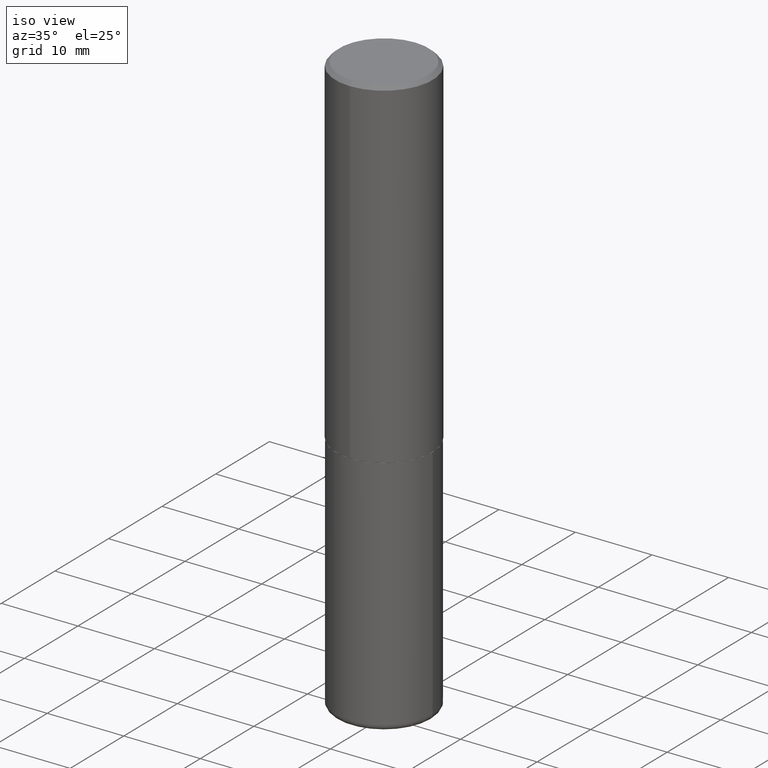
[diagram: clean part render]
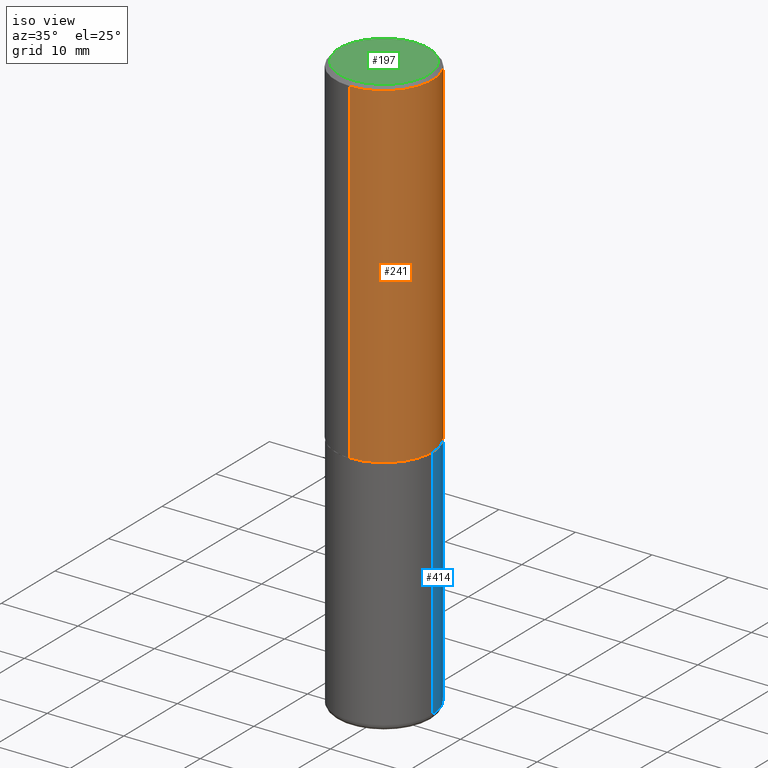
[diagram: same view with three faces highlighted in distinct colors, each labeled with its STEP entity id]
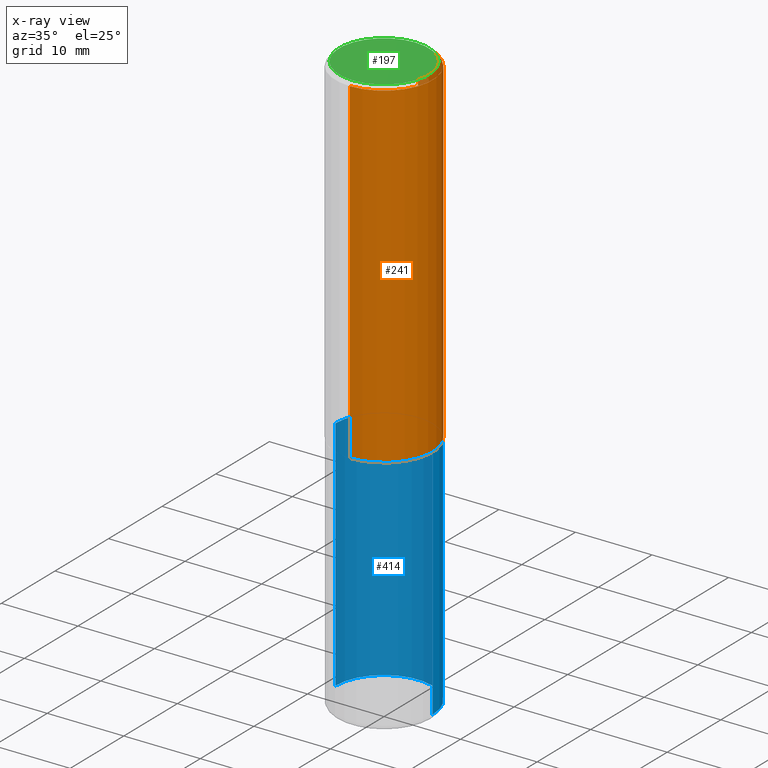
[diagram: x-ray of the same camera — body ghosted, the three highlighted faces saturated]
A machine part, iso view with three faces highlighted in distinct colors.
The next image is the same camera in x-ray (body ghosted, the three faces saturated) — at least one of them is partly hidden behind the body in this view.
Their STEP definitions:

[orange] entity #241 — the highlighted cylindrical surface (partial cylindrical patch) has radius 6.35 mm, axis along (-0, 0, 1).
#6 = LINE ( 'NONE', #59, #158 ) ;
#36 = LINE ( 'NONE', #301, #49 ) ;
#44 = DIRECTION ( 'NONE',  ( -2.445072124781674388E-29, 3.492049409190606744E-15, 1.000000000000000000 ) ) ;
#49 = VECTOR ( 'NONE', #146, 39.37007874015748143 ) ;
#59 = CARTESIAN_POINT ( 'NONE',  ( -1.745740669421567467E-15, -0.2500000000000001110, 8.730123522976521790E-16 ) ) ;
#67 = ORIENTED_EDGE ( 'NONE', *, *, #227, .T. ) ;
#71 = ORIENTED_EDGE ( 'NONE', *, *, #296, .F. ) ;
#77 = VERTEX_POINT ( 'NONE', #366 ) ;
#78 = CARTESIAN_POINT ( 'NONE',  ( 4.276431146243148366E-29, -6.107594416674370195E-15, -1.748999999999999888 ) ) ;
#86 = EDGE_CURVE ( 'NONE', #302, #95, #178, .T. ) ;
#95 = VERTEX_POINT ( 'NONE', #143 ) ;
#97 = DIRECTION ( 'NONE',  ( -2.445072124781674107E-29, 3.492049409190606350E-15, 1.000000000000000000 ) ) ;
#102 = ORIENTED_EDGE ( 'NONE', *, *, #385, .F. ) ;
#114 = AXIS2_PLACEMENT_3D ( 'NONE', #303, #44, #416 ) ;
#137 = DIRECTION ( 'NONE',  ( -6.982962677686265133E-15, -1.000000000000000000, 3.278217592397113101E-15 ) ) ;
#143 = CARTESIAN_POINT ( 'NONE',  ( 1.776356839400273342E-15, 0.2499999999999941158, -1.749000000000000554 ) ) ;
#146 = DIRECTION ( 'NONE',  ( -2.445072124781674107E-29, 3.492049409190606350E-15, 1.000000000000000000 ) ) ;
#158 = VECTOR ( 'NONE', #97, 39.37007874015748143 ) ;
#161 = EDGE_LOOP ( 'NONE', ( #386, #67, #102, #71 ) ) ;
#168 = DIRECTION ( 'NONE',  ( -2.445072124781674388E-29, 3.492049409190606744E-15, 1.000000000000000000 ) ) ;
#176 = DIRECTION ( 'NONE',  ( -6.982962677686266711E-15, -1.000000000000000000, 3.492049409190607138E-15 ) ) ;
#178 = CIRCLE ( 'NONE', #203, 0.2500000000000002220 ) ;
#198 = DIRECTION ( 'NONE',  ( -2.445072124781674388E-29, 3.492049409190606744E-15, 1.000000000000000000 ) ) ;
#203 = AXIS2_PLACEMENT_3D ( 'NONE', #78, #168, #137 ) ;
#227 = EDGE_CURVE ( 'NONE', #95, #410, #36, .T. ) ;
#241 = ADVANCED_FACE ( 'NONE', ( #279 ), #384, .T. ) ;
#244 = CIRCLE ( 'NONE', #114, 0.2500000000000000555 ) ;
#273 = CARTESIAN_POINT ( 'NONE',  ( 0.000000000000000000, 0.000000000000000000, 0.000000000000000000 ) ) ;
#279 = FACE_OUTER_BOUND ( 'NONE', #161, .T. ) ;
#296 = EDGE_CURVE ( 'NONE', #302, #77, #6, .T. ) ;
#301 = CARTESIAN_POINT ( 'NONE',  ( 1.776356839400251254E-15, 0.2500000000000001110, -8.730123522976521790E-16 ) ) ;
#302 = VERTEX_POINT ( 'NONE', #387 ) ;
#303 = CARTESIAN_POINT ( 'NONE',  ( 4.890144249563362123E-31, -6.984098818381232815E-17, -0.02000000000000005593 ) ) ;
#322 = AXIS2_PLACEMENT_3D ( 'NONE', #273, #198, #176 ) ;
#359 = CARTESIAN_POINT ( 'NONE',  ( 1.745740669421567467E-15, 0.2500000000000000000, -0.02000000000000093023 ) ) ;
#366 = CARTESIAN_POINT ( 'NONE',  ( -1.715124499442882693E-15, -0.2500000000000001110, -0.01999999999999918163 ) ) ;
#384 = CYLINDRICAL_SURFACE ( 'NONE', #322, 0.2500000000000001110 ) ;
#385 = EDGE_CURVE ( 'NONE', #77, #410, #244, .T. ) ;
#386 = ORIENTED_EDGE ( 'NONE', *, *, #86, .T. ) ;
#387 = CARTESIAN_POINT ( 'NONE',  ( -1.745740669421525262E-15, -0.2500000000000063283, -1.748999999999999000 ) ) ;
#410 = VERTEX_POINT ( 'NONE', #359 ) ;
#416 = DIRECTION ( 'NONE',  ( -6.982962677686265922E-15, -1.000000000000000000, 3.500180241882336472E-15 ) ) ;

[blue] entity #414 — the highlighted cylindrical surface (partial cylindrical patch) has radius 6.35 mm, axis along (-0, 0, 1).
#27 = CARTESIAN_POINT ( 'NONE',  ( -0.2499999999999998612, -8.593342736963892519E-15, -2.970000000000000195 ) ) ;
#42 = ORIENTED_EDGE ( 'NONE', *, *, #183, .F. ) ;
#48 = DIRECTION ( 'NONE',  ( 1.000000000000000000, -6.982962677686266711E-15, 0.000000000000000000 ) ) ;
#52 = DIRECTION ( 'NONE',  ( -2.445468806185136597E-29, 3.491481338843145583E-15, 1.000000000000000000 ) ) ;
#55 = AXIS2_PLACEMENT_3D ( 'NONE', #372, #402, #150 ) ;
#62 = EDGE_CURVE ( 'NONE', #156, #360, #170, .T. ) ;
#81 = VECTOR ( 'NONE', #348, 39.37007874015748143 ) ;
#98 = CARTESIAN_POINT ( 'NONE',  ( 0.000000000000000000, 0.000000000000000000, 0.000000000000000000 ) ) ;
#104 = CARTESIAN_POINT ( 'NONE',  ( 0.2500000000000000000, -7.855833012397072137E-15, -1.750000000000000222 ) ) ;
#106 = CIRCLE ( 'NONE', #340, 0.2500000000000000000 ) ;
#120 = CARTESIAN_POINT ( 'NONE',  ( -0.2500000000000000000, -6.463539120269572968E-15, -1.750000000000000222 ) ) ;
#133 = ORIENTED_EDGE ( 'NONE', *, *, #62, .T. ) ;
#139 = CARTESIAN_POINT ( 'NONE',  ( -0.2500000000000000000, 1.776356839400250465E-15, -1.229733772563726445E-29 ) ) ;
#150 = DIRECTION ( 'NONE',  ( 1.000000000000000000, -6.982962677686270655E-15, 0.000000000000000000 ) ) ;
#151 = LINE ( 'NONE', #139, #268 ) ;
#156 = VERTEX_POINT ( 'NONE', #175 ) ;
#157 = CARTESIAN_POINT ( 'NONE',  ( 0.2500000000000000000, -1.745740669421566678E-15, 1.219044193948983948E-29 ) ) ;
#169 = DIRECTION ( 'NONE',  ( -2.445468806185136597E-29, 3.491481338843145583E-15, 1.000000000000000000 ) ) ;
#170 = CIRCLE ( 'NONE', #55, 0.2500000000000000000 ) ;
#175 = CARTESIAN_POINT ( 'NONE',  ( 0.2499999999999998612, -1.211544024578571124E-14, -2.970000000000000195 ) ) ;
#180 = DIRECTION ( 'NONE',  ( 1.000000000000000000, -6.982962677686266711E-15, 4.876176775795935793E-29 ) ) ;
#183 = EDGE_CURVE ( 'NONE', #156, #381, #295, .T. ) ;
#187 = DIRECTION ( 'NONE',  ( -2.445468806185136877E-29, 3.491481338843145188E-15, 1.000000000000000000 ) ) ;
#192 = FACE_OUTER_BOUND ( 'NONE', #257, .T. ) ;
#195 = CYLINDRICAL_SURFACE ( 'NONE', #328, 0.2500000000000000000 ) ;
#209 = VERTEX_POINT ( 'NONE', #120 ) ;
#255 = EDGE_CURVE ( 'NONE', #381, #209, #106, .T. ) ;
#257 = EDGE_LOOP ( 'NONE', ( #133, #355, #323, #42 ) ) ;
#268 = VECTOR ( 'NONE', #187, 39.37007874015748143 ) ;
#283 = EDGE_CURVE ( 'NONE', #360, #209, #151, .T. ) ;
#295 = LINE ( 'NONE', #157, #81 ) ;
#323 = ORIENTED_EDGE ( 'NONE', *, *, #255, .F. ) ;
#328 = AXIS2_PLACEMENT_3D ( 'NONE', #98, #52, #180 ) ;
#337 = CARTESIAN_POINT ( 'NONE',  ( 4.279570410823989044E-29, -6.110092342975505460E-15, -1.750000000000000222 ) ) ;
#340 = AXIS2_PLACEMENT_3D ( 'NONE', #337, #169, #48 ) ;
#348 = DIRECTION ( 'NONE',  ( -2.445468806185136877E-29, 3.491481338843145188E-15, 1.000000000000000000 ) ) ;
#355 = ORIENTED_EDGE ( 'NONE', *, *, #283, .T. ) ;
#360 = VERTEX_POINT ( 'NONE', #27 ) ;
#372 = CARTESIAN_POINT ( 'NONE',  ( 7.263042354369856275E-29, -1.036969957636414298E-14, -2.970000000000000195 ) ) ;
#381 = VERTEX_POINT ( 'NONE', #104 ) ;
#402 = DIRECTION ( 'NONE',  ( -2.445468806185136597E-29, 3.491481338843145583E-15, 1.000000000000000000 ) ) ;
#414 = ADVANCED_FACE ( 'NONE', ( #192 ), #195, .T. ) ;

[green] entity #197 — the highlighted planar face has unit normal (0, -0, -1).
#14 = CARTESIAN_POINT ( 'NONE',  ( 1.675911042644703774E-15, 0.2299999999999998990, -6.920593831913123980E-16 ) ) ;
#25 = CARTESIAN_POINT ( 'NONE',  ( -2.716768072829434168E-45, 3.880085273345076260E-31, 1.111119809225267872E-16 ) ) ;
#31 = DIRECTION ( 'NONE',  ( -6.982962677686265922E-15, -1.000000000000000000, 3.492049409190606744E-15 ) ) ;
#57 = AXIS2_PLACEMENT_3D ( 'NONE', #411, #408, #125 ) ;
#73 = DIRECTION ( 'NONE',  ( -2.445072124781674388E-29, 3.492049409190606744E-15, 1.000000000000000000 ) ) ;
#74 = VERTEX_POINT ( 'NONE', #14 ) ;
#91 = FACE_OUTER_BOUND ( 'NONE', #136, .T. ) ;
#94 = AXIS2_PLACEMENT_3D ( 'NONE', #25, #73, #254 ) ;
#125 = DIRECTION ( 'NONE',  ( 6.982962677686265922E-15, 1.000000000000000000, -3.492049409190606350E-15 ) ) ;
#136 = EDGE_LOOP ( 'NONE', ( #358, #300 ) ) ;
#145 = CARTESIAN_POINT ( 'NONE',  ( -1.646519519465166968E-15, -0.2299999999999998990, 9.142833450363660218E-16 ) ) ;
#197 = ADVANCED_FACE ( 'NONE', ( #91 ), #208, .F. ) ;
#208 = PLANE ( 'NONE',  #57 ) ;
#225 = AXIS2_PLACEMENT_3D ( 'NONE', #409, #329, #31 ) ;
#254 = DIRECTION ( 'NONE',  ( -6.982962677686265922E-15, -1.000000000000000000, 3.492049409190606744E-15 ) ) ;
#300 = ORIENTED_EDGE ( 'NONE', *, *, #319, .T. ) ;
#319 = EDGE_CURVE ( 'NONE', #417, #74, #351, .T. ) ;
#329 = DIRECTION ( 'NONE',  ( -2.445072124781674388E-29, 3.492049409190606744E-15, 1.000000000000000000 ) ) ;
#351 = CIRCLE ( 'NONE', #94, 0.2299999999999998990 ) ;
#358 = ORIENTED_EDGE ( 'NONE', *, *, #361, .T. ) ;
#361 = EDGE_CURVE ( 'NONE', #74, #417, #413, .T. ) ;
#408 = DIRECTION ( 'NONE',  ( 2.445072124781674388E-29, -3.492049409190606350E-15, -1.000000000000000000 ) ) ;
#409 = CARTESIAN_POINT ( 'NONE',  ( -2.716768072829434168E-45, 3.880085273345076260E-31, 1.111119809225267872E-16 ) ) ;
#411 = CARTESIAN_POINT ( 'NONE',  ( 1.606081415867840476E-15, 0.2299999999999998990, -7.476153736525759272E-16 ) ) ;
#413 = CIRCLE ( 'NONE', #225, 0.2299999999999998990 ) ;
#417 = VERTEX_POINT ( 'NONE', #145 ) ;